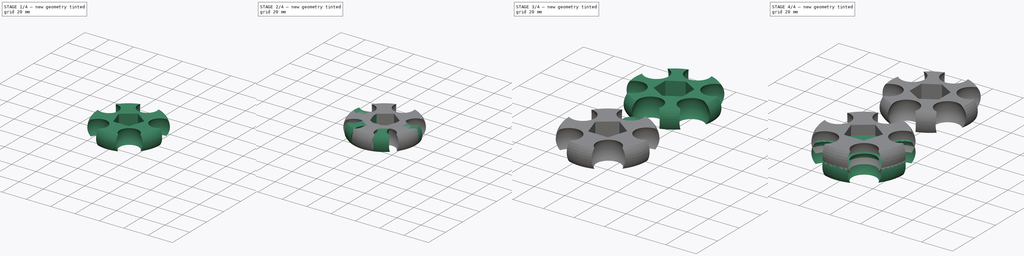
[diagram: build sequence overview — one tinted view per stage of 4, left to right]
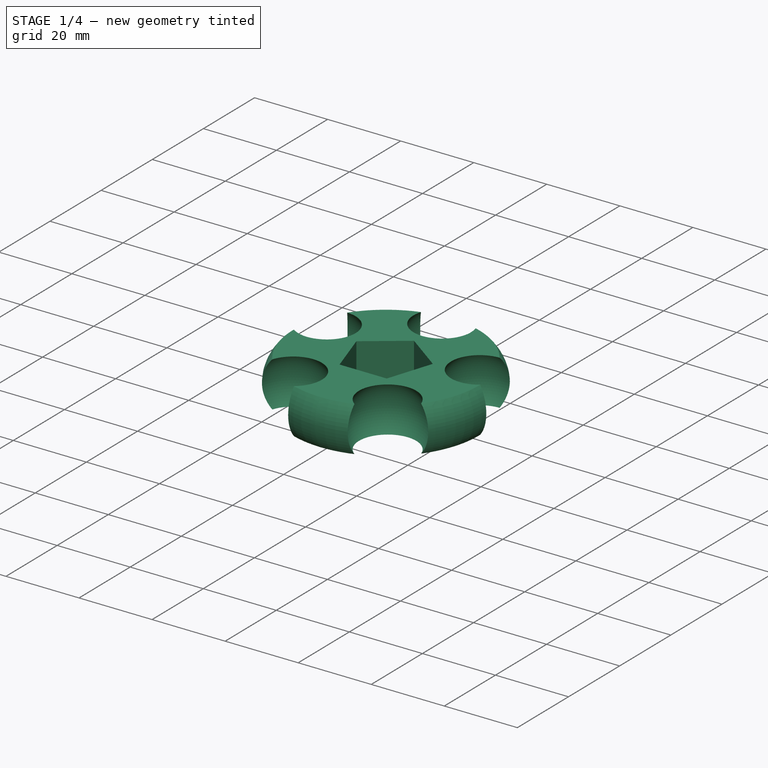
[diagram: stage 1 of 4 — iso view after this stage's code; geometry added in this stage tinted green]
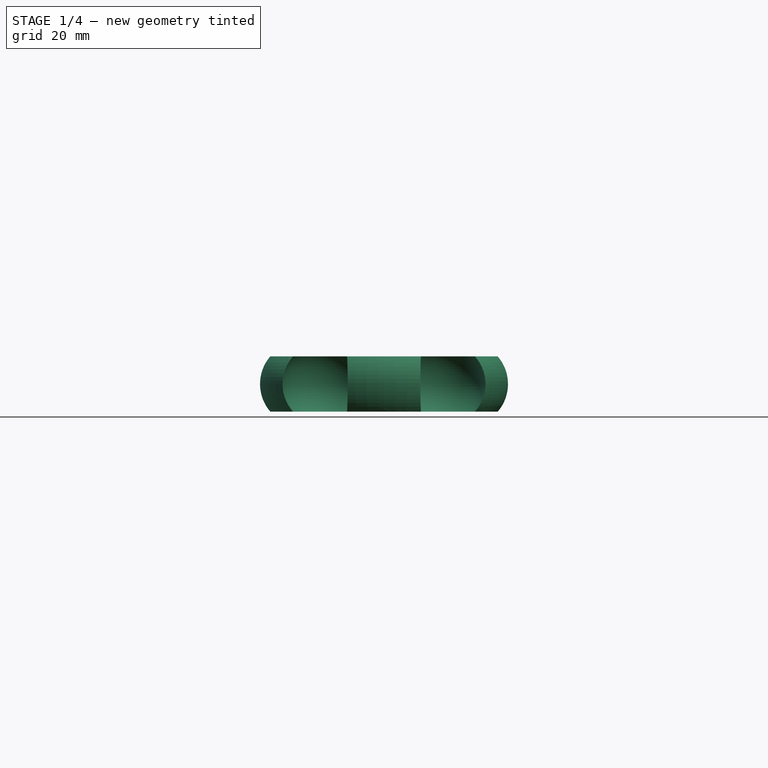
[diagram: stage 1 of 4 — front view after this stage's code; geometry added in this stage tinted green]
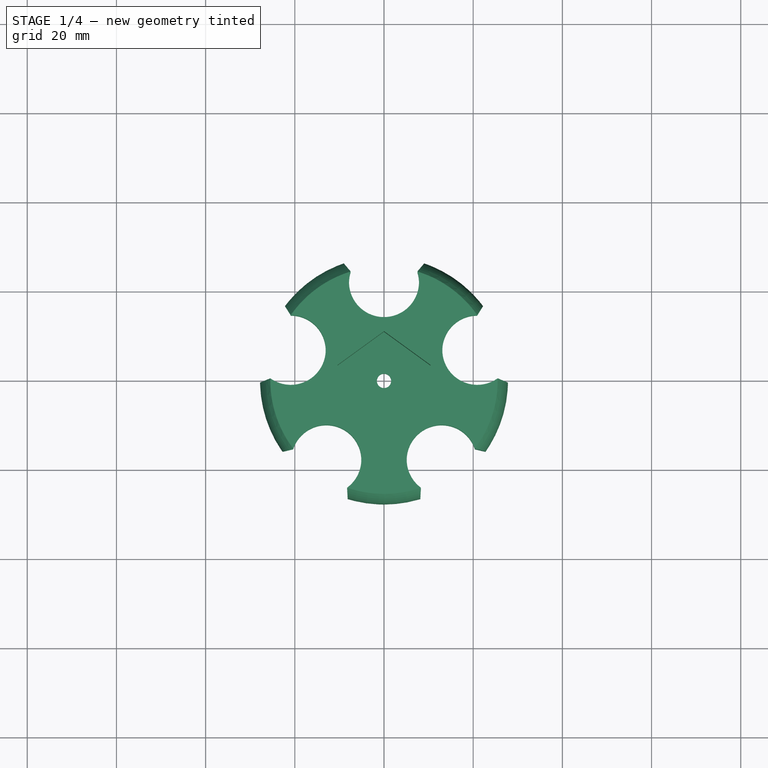
[diagram: stage 1 of 4 — top view after this stage's code; geometry added in this stage tinted green]
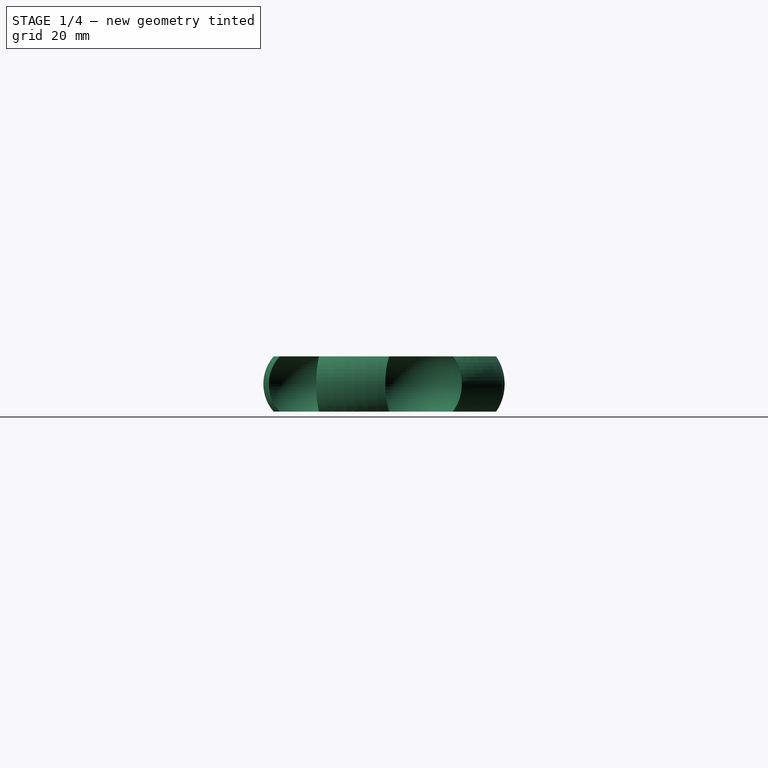
[diagram: stage 1 of 4 — right view after this stage's code; geometry added in this stage tinted green]
FCSTD DOCUMENT  (FreeCAD 0.16R6703 (Git))
Label: hubs
License: All rights reserved
LicenseURL: http://en.wikipedia.org/wiki/All_rights_reserved
objects: Sketcher::SketchObject×3, Part::FeaturePython×3, Part::Cut×3, Part::Feature×2, Part::Prism×2, PartDesign::Pocket×2, PartDesign::Revolution×1, Part::Sphere×1, Spreadsheet::Sheet×1, App::DocumentObjectGroup×1
note: 20 computed .brp shape members not serialized (recipe doc carries the construction recipe); baked Part::Feature solids carry a one-line shape summary decoded from their .brp

FEATURE [Part::Feature] Cut003  label="Hub-5-base"
  Placement = pos=(0,0,6.2) rot=(0,0,1;0rad)
  shape: bbox 55.6 x 54.38 x 12.4 mm, 18 faces (baked)
FEATURE [Part::Prism] Prism001
  Circumradius = 11
  Height = 15
  Placement = pos=(0,0,3) rot=(0,0,1;0.314159rad)
  Polygon = 5
FEATURE [Part::Cut] Cut004  label="Hub-5-pentagon"
  Base = -> Cut003
  Tool = -> Prism001
FEATURE [Sketcher::SketchObject] Sketch002  label="drill-sketch"
  Placement = pos=(0,0,3) rot=(0,0,1;0rad)
  Support = -> Cut004 [Face24]
  sketch-geometry (1):
    g0: Circle CenterX=0 CenterY=0 CenterZ=0 NormalX=0 NormalY=0 NormalZ=1 Radius=1.6
  constraints (2):
    c: Coincident(g0,g-1)
    c: Radius(g0) = 1.6
FEATURE [PartDesign::Pocket] Pocket001  label="Hub-5-src"
  Length = 5
  Sketch = -> Sketch002
  Type = 1
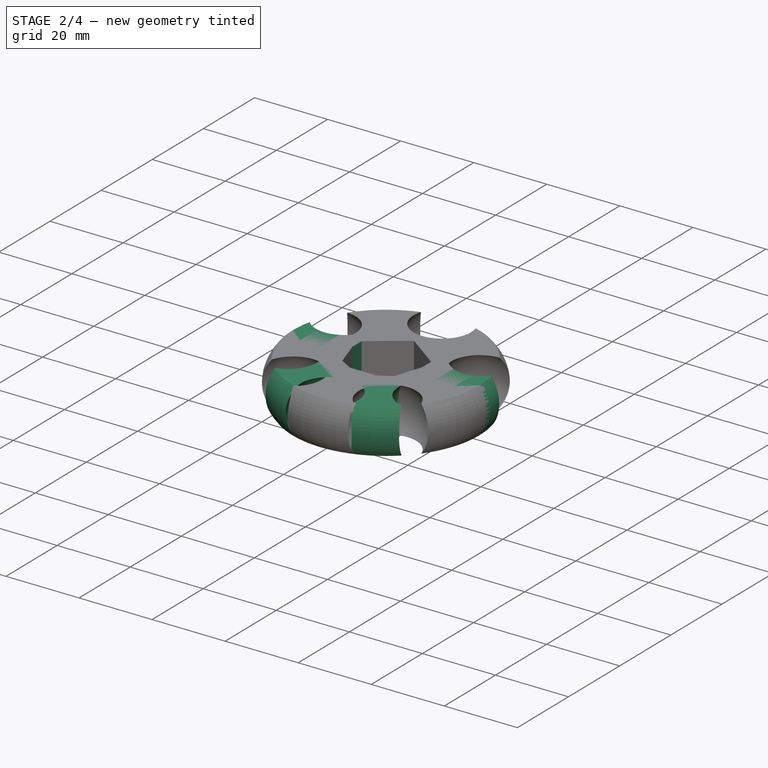
[diagram: stage 2 of 4 — iso view after this stage's code; geometry added in this stage tinted green]
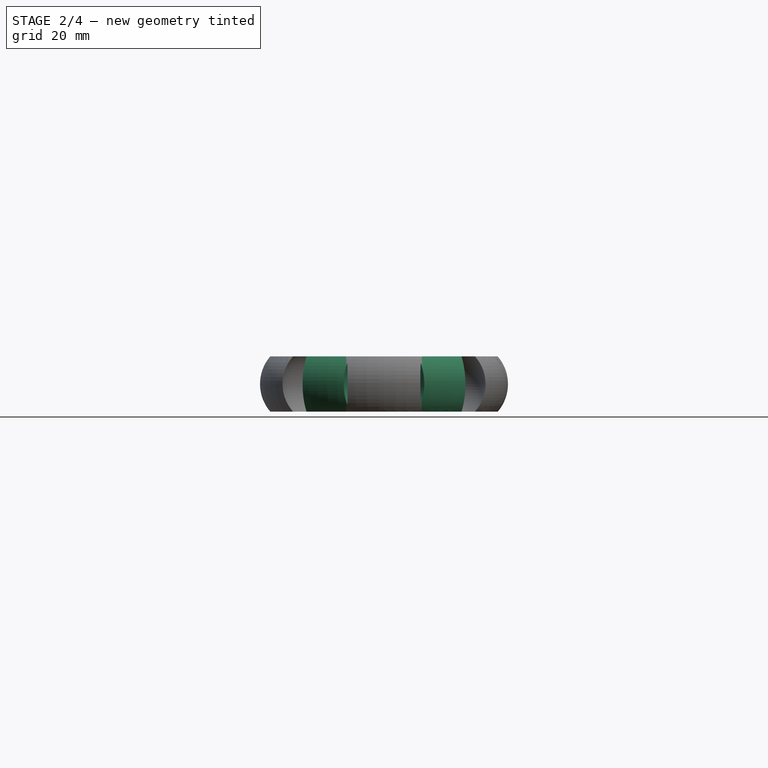
[diagram: stage 2 of 4 — front view after this stage's code; geometry added in this stage tinted green]
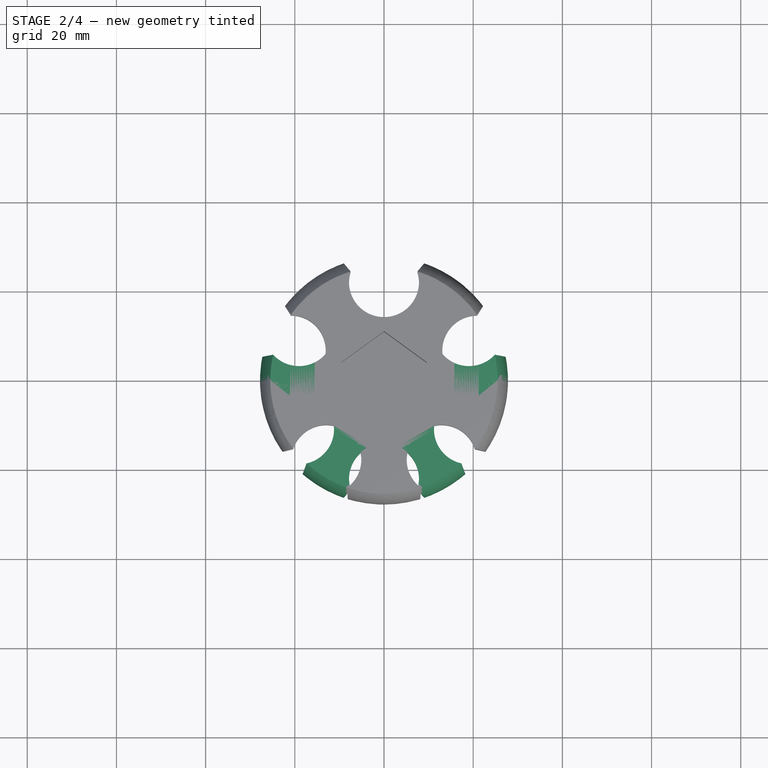
[diagram: stage 2 of 4 — top view after this stage's code; geometry added in this stage tinted green]
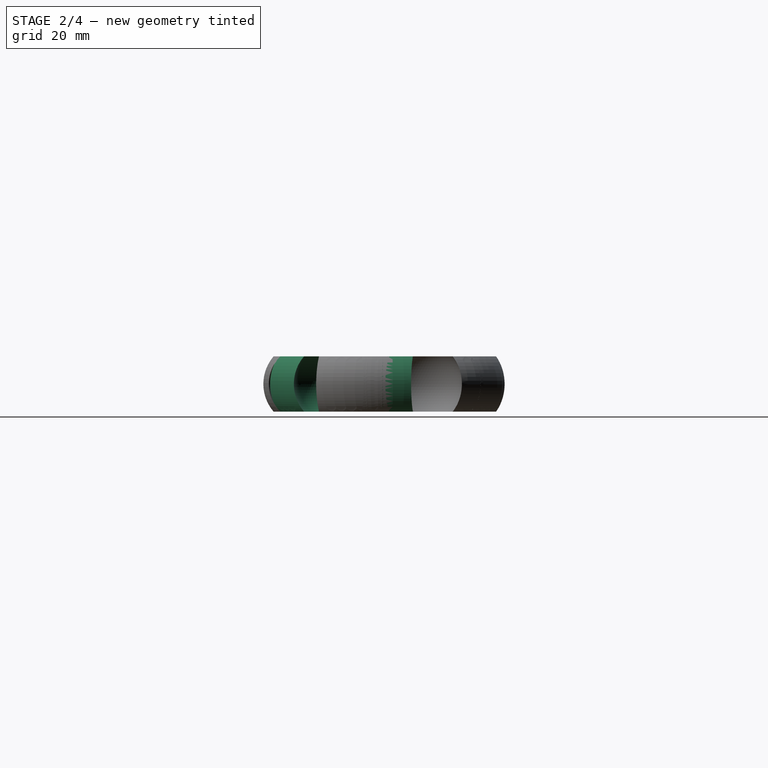
[diagram: stage 2 of 4 — right view after this stage's code; geometry added in this stage tinted green]
FEATURE [Part::Feature] Cut001  label="hub-6-base"
  Placement = pos=(0,0,6.2) rot=(0,0,1;0rad)
  shape: bbox 55.6 x 53.16 x 12.4 mm, 20 faces (baked)
FEATURE [Part::Prism] Prism
  Circumradius = 11
  Height = 15
  Placement = pos=(0,0,3) rot=(0,0,1;0.523599rad)
  Polygon = 6
FEATURE [Part::Cut] Cut002  label="hub-6-hexagon"
  Base = -> Cut001
  Tool = -> Prism
FEATURE [App::DocumentObjectGroup] Group  label="src"
  Group = -> [Cut,Pocket,Cut002,Cut004,Pocket001]
FEATURE [Part::FeaturePython] Clone001  label="Hub-5"  # Draft clone (typed FeaturePython)
  Objects = -> [Pocket001]
  Scale = (1,1,1)
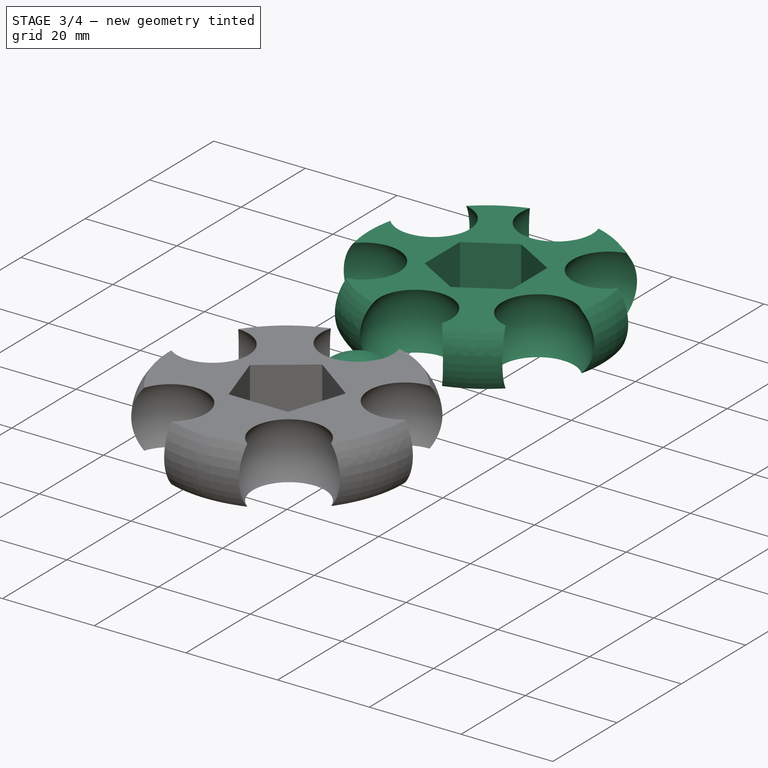
[diagram: stage 3 of 4 — iso view after this stage's code; geometry added in this stage tinted green]
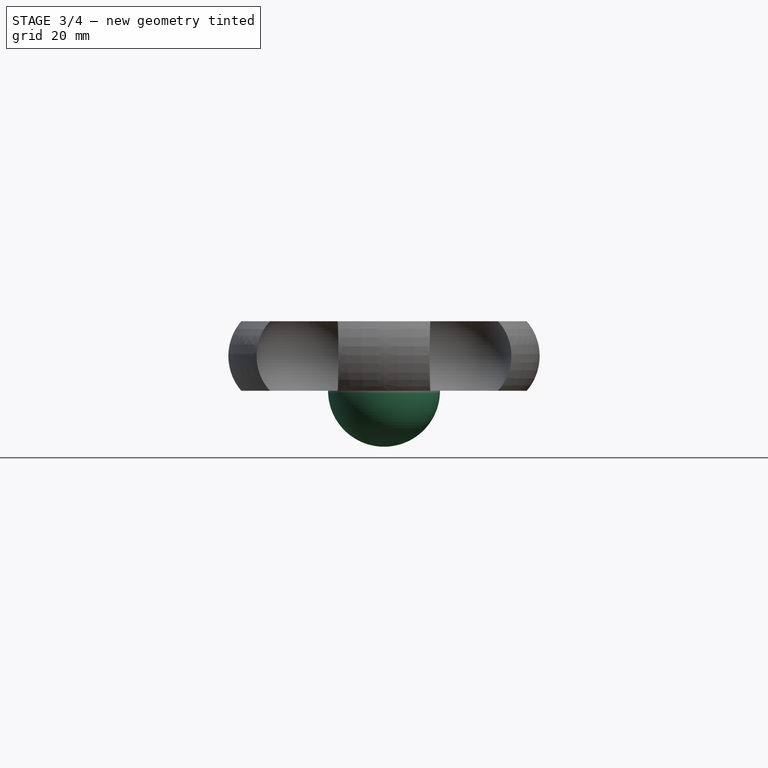
[diagram: stage 3 of 4 — front view after this stage's code; geometry added in this stage tinted green]
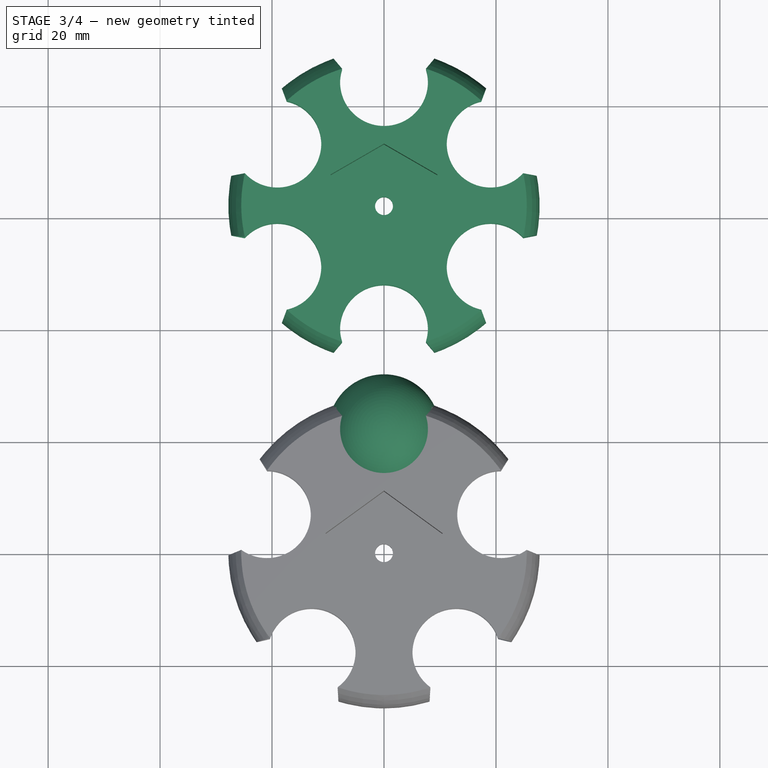
[diagram: stage 3 of 4 — top view after this stage's code; geometry added in this stage tinted green]
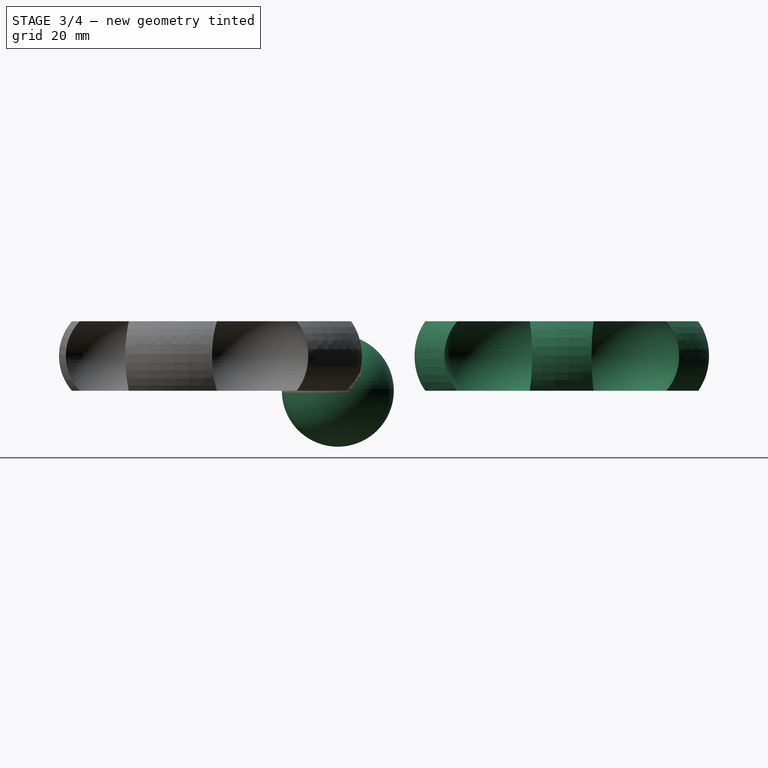
[diagram: stage 3 of 4 — right view after this stage's code; geometry added in this stage tinted green]
FEATURE [Part::Sphere] Sphere
  Angle1 = -90
  Angle2 = 90
  Angle3 = 360
  Placement = pos=(0,22,0) rot=(0,0,1;0rad)
  Radius = 10
FEATURE [Sketcher::SketchObject] Sketch001
  Placement = pos=(0,0,3) rot=(0,0,1;0rad)
  Support = -> Cut002 [Face27]
  sketch-geometry (1):
    g0: Circle CenterX=0 CenterY=0 CenterZ=0 NormalX=0 NormalY=0 NormalZ=1 Radius=1.6
  constraints (2):
    c: Coincident(g0,g-1)
    c: Radius(g0) = 1.6
FEATURE [PartDesign::Pocket] Pocket  label="Hub-6-src"
  Length = 5
  Sketch = -> Sketch001
  Type = 1
FEATURE [Part::FeaturePython] Clone  label="Hub-6"  # Draft clone (typed FeaturePython)
  Objects = -> [Pocket]
  Placement = pos=(0,62,0) rot=(0,0,1;0rad)
  Scale = (1,1,1)
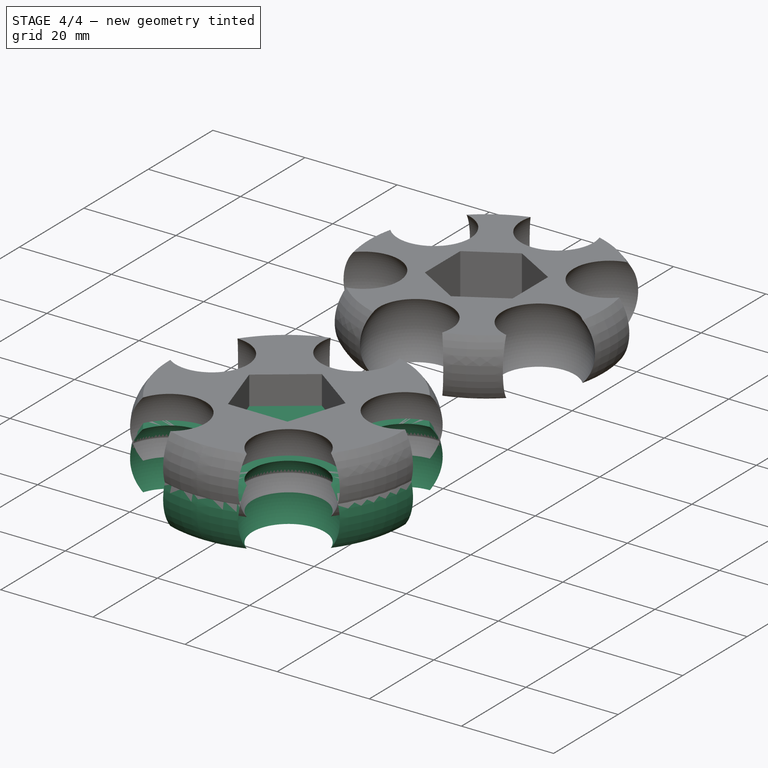
[diagram: stage 4 of 4 — iso view after this stage's code; geometry added in this stage tinted green]
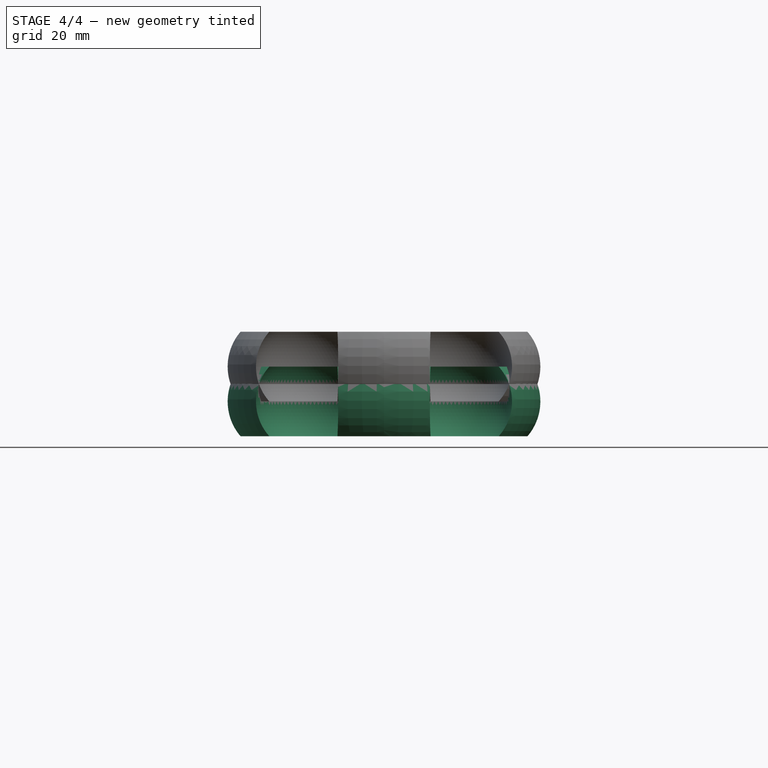
[diagram: stage 4 of 4 — front view after this stage's code; geometry added in this stage tinted green]
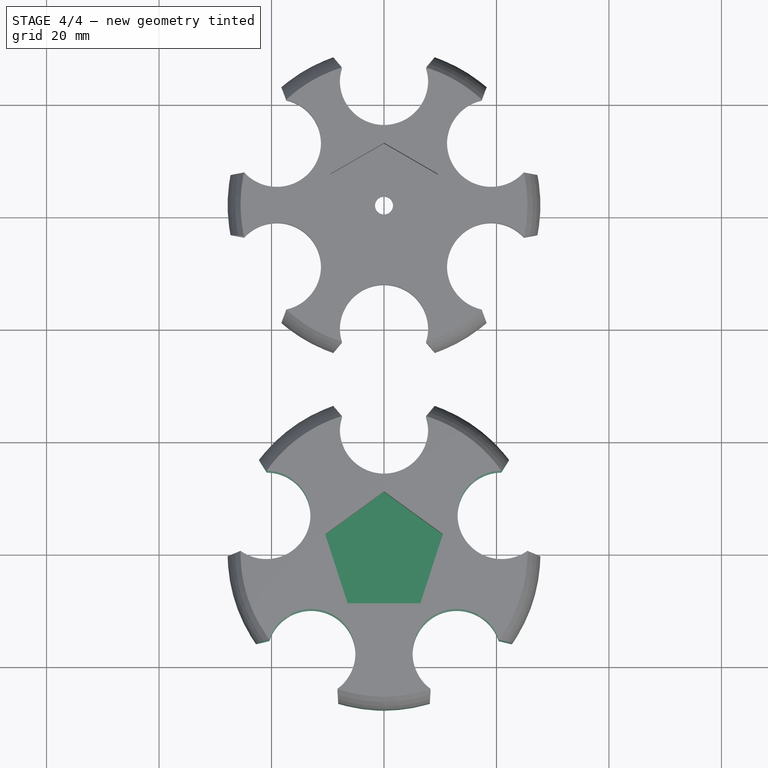
[diagram: stage 4 of 4 — top view after this stage's code; geometry added in this stage tinted green]
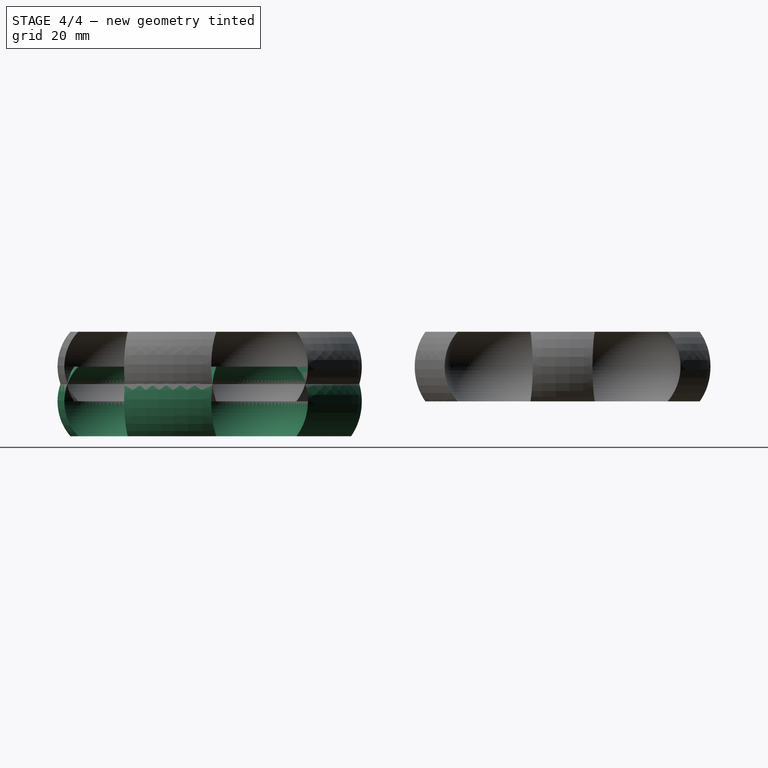
[diagram: stage 4 of 4 — right view after this stage's code; geometry added in this stage tinted green]
FEATURE [Sketcher::SketchObject] Sketch  label="body-sketch"
  Placement = pos=(0,0,0) rot=(0.57735,0.57735,0.57735;2.0944rad)
  expr: Constraints[9] = 51 / 2
  sketch-geometry (4):
    g0: LineSegment StartX=-25.5 StartY=6.2 StartZ=0 EndX=0 EndY=6.2 EndZ=0
    g1: LineSegment StartX=0 StartY=-6.2 StartZ=0 EndX=-25.5 EndY=-6.2 EndZ=0
    g2: ArcOfCircle CenterX=-18.3021 CenterY=0 CenterZ=0 NormalX=0 NormalY=0 NormalZ=1 Radius=9.5 StartAngle=2.43054 EndAngle=3.85265
    g3: LineSegment StartX=0 StartY=-6.2 StartZ=0 EndX=0 EndY=6.2 EndZ=0
  constraints (13):
    c: Horizontal(g0)
    c: Horizontal(g1)
    c: Symmetric(g1,g0,g-1)
    c: DistanceY(g1,g0) = 12.4
    c: PointOnObject(g2,g-1)
    c: Coincident(g2,g1)
    c: Coincident(g2,g0)
    c: Radius(g2) = 9.5
    c: PointOnObject(g0,g-2)
    c: DistanceX(g0,g0) = 25.5
    c: PointOnObject(g1,g-2)
    c: Coincident(g3,g1)
    c: Coincident(g3,g0)
FEATURE [PartDesign::Revolution] Revolution  label="body"
  Angle = 360
  Axis = (0,0,1)
  Base = (0,0,0)
  Placement = pos=(0,0,0) rot=(0.57735,0.57735,0.57735;2.0944rad)
  ReferenceAxis = -> Sketch [V_Axis]
  Sketch = -> Sketch
FEATURE [Part::FeaturePython] Array  label="spheres"  # Draft array (typed FeaturePython)
  Angle = 360
  ArrayType = 1
  Axis = (0,0,1)
  Base = -> Sphere
  Center = (0,0,0)
  Fuse = true
  IntervalAxis = (0,0,0)
  IntervalX = (1,0,0)
  IntervalY = (0,1,0)
  IntervalZ = (0,0,0)
  NumberPolar = 5
  NumberX = 2
  NumberY = 2
  NumberZ = 1
  expr: NumberPolar = Parameters.nv
FEATURE [Spreadsheet::Sheet] Spreadsheet  label="Parameters"
  cells = B3=nv; C3(nv)=5; D3=Number of vertex; E3=Número de vértices
FEATURE [Part::Cut] Cut  label="hub-parametric"
  Base = -> Revolution
  Tool = -> Array
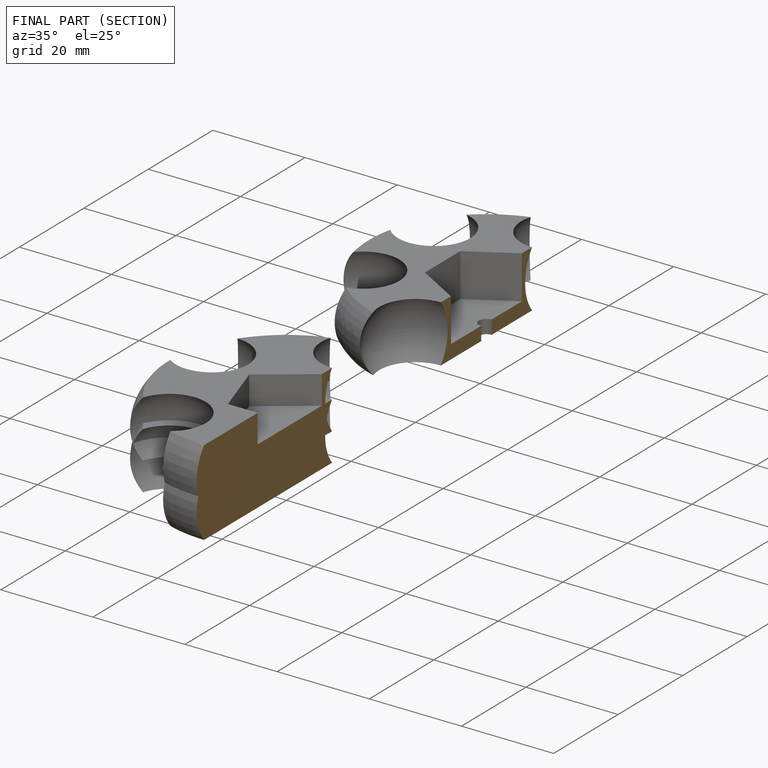
[diagram: finished part — half-section view (interior)]
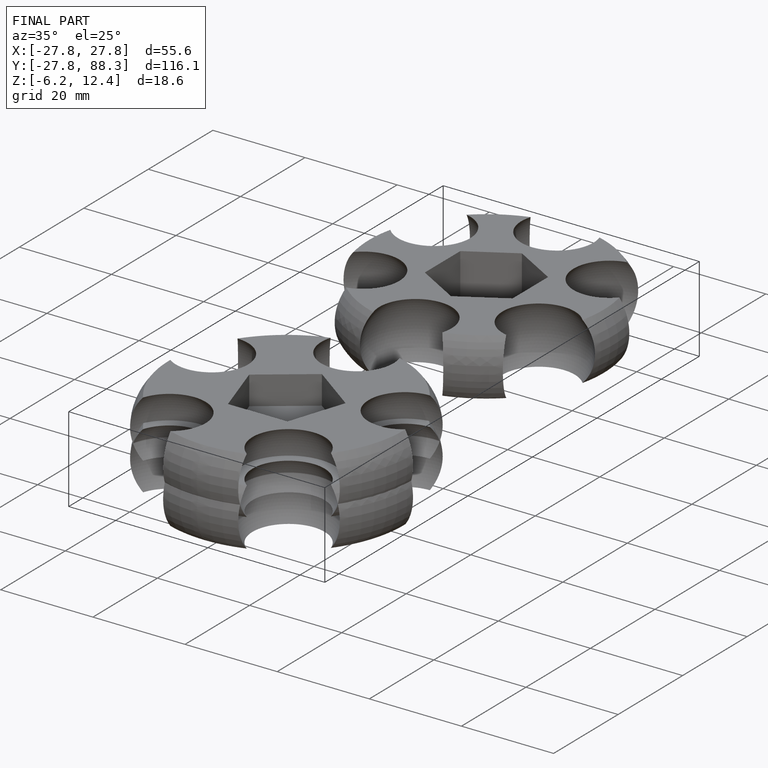
[diagram: finished part — iso view with bounding-box wireframe]
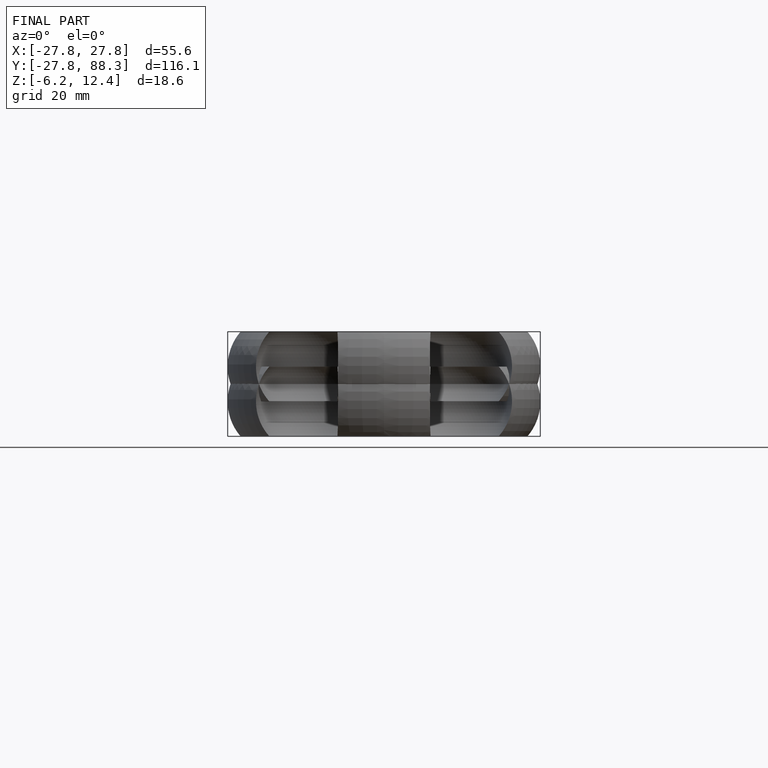
[diagram: finished part — front view with bounding-box wireframe]
